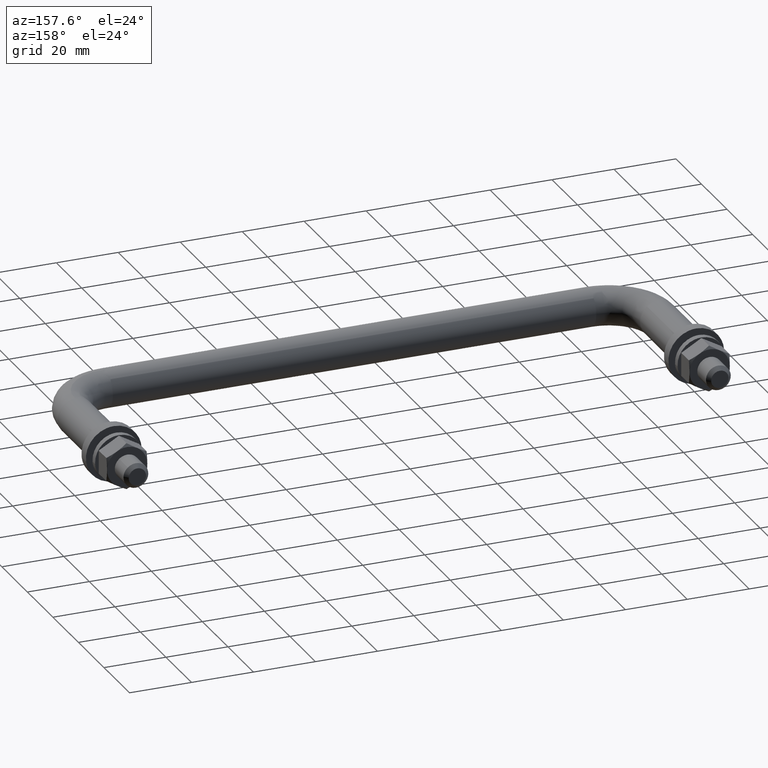
[diagram: clean part render]
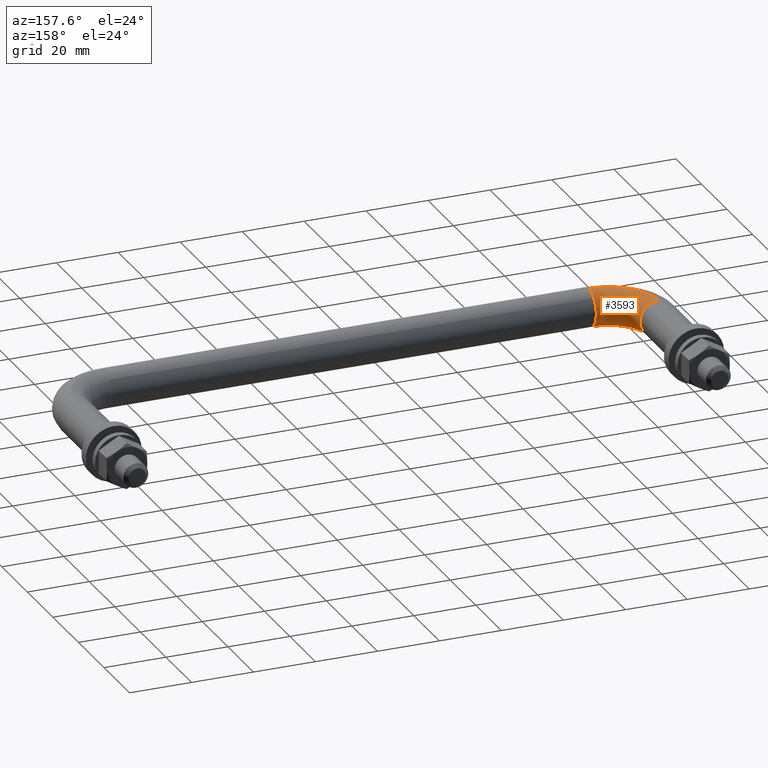
[diagram: same view with one face highlighted and labeled with its STEP entity id]
A machine part, auxiliary view. The second image highlights one B-rep face of the part: STEP entity #3593.
In plain terms, the highlighted face is a freeform B-spline surface patch.
Its self-contained STEP definition (entity closure, byte-faithful):
#2976=CARTESIAN_POINT('',(15.999999999610340,-43.581600490287009,-5.985394043024395));
#2977=VERTEX_POINT('',#2976);
#2993=CARTESIAN_POINT('',(16.0,-38.0,0.0));
#2994=VERTEX_POINT('',#2993);
#2995=CARTESIAN_POINT('',(16.0,-38.0,0.0));
#2996=CARTESIAN_POINT('',(15.999999999999998,-37.999999999999993,-5.595221083111795));
#2997=CARTESIAN_POINT('',(15.999999999610345,-43.581600490287016,-5.985394043024395));
#3005=(BOUNDED_CURVE()B_SPLINE_CURVE(2,(#2995,#2996,#2997),.UNSPECIFIED.,.F.,.U.)B_SPLINE_CURVE_WITH_KNOTS((3,3),(0.0,0.237833686520174),.UNSPECIFIED.)CURVE()GEOMETRIC_REPRESENTATION_ITEM()RATIONAL_B_SPLINE_CURVE((1.0,0.721360504051347,0.972879876355423))REPRESENTATION_ITEM(''));
#3006=EDGE_CURVE('',#2994,#2977,#3005,.T.);
#3008=CARTESIAN_POINT('',(16.0,-40.024283299106493,4.493737499477844));
#3009=VERTEX_POINT('',#3008);
#3010=CARTESIAN_POINT('',(16.0,-40.024283299106486,4.493737499477844));
#3011=CARTESIAN_POINT('',(16.000000000000004,-37.999999999999993,2.702805803863420));
#3012=CARTESIAN_POINT('',(16.0,-38.0,0.0));
#3020=(BOUNDED_CURVE()B_SPLINE_CURVE(2,(#3010,#3011,#3012),.UNSPECIFIED.,.F.,.U.)B_SPLINE_CURVE_WITH_KNOTS((3,3),(0.865779767457664,1.0),.UNSPECIFIED.)CURVE()GEOMETRIC_REPRESENTATION_ITEM()RATIONAL_B_SPLINE_CURVE((0.854350179069043,0.842751216243140,1.0))REPRESENTATION_ITEM(''));
#3021=EDGE_CURVE('',#3009,#2994,#3020,.T.);
#3125=CARTESIAN_POINT('',(15.999999999535239,-44.075396242597783,5.999526265181453));
#3126=VERTEX_POINT('',#3125);
#3127=CARTESIAN_POINT('',(15.999999999535246,-44.075396242597783,5.999526265181453));
#3128=CARTESIAN_POINT('',(16.0,-44.037699611249401,6.0));
#3129=CARTESIAN_POINT('',(16.0,-44.0,6.0));
#3130=CARTESIAN_POINT('',(15.999999999999996,-41.726806087292310,6.0));
#3131=CARTESIAN_POINT('',(16.0,-40.024283299106486,4.493737499477844));
#3139=(BOUNDED_CURVE()B_SPLINE_CURVE(2,(#3127,#3128,#3129,#3130,#3131),.UNSPECIFIED.,.F.,.U.)B_SPLINE_CURVE_WITH_KNOTS((3,2,3),(0.747784295728396,0.750000000000000,0.865779767457664),.UNSPECIFIED.)CURVE()GEOMETRIC_REPRESENTATION_ITEM()RATIONAL_B_SPLINE_CURVE((0.994854295199036,0.997404140975804,1.0,0.864355564943408,0.854350179069043))REPRESENTATION_ITEM(''));
#3140=EDGE_CURVE('',#3126,#3009,#3139,.T.);
#3192=CARTESIAN_POINT('',(-0.075396246629108,-28.000000001397801,5.999526265130792));
#3193=VERTEX_POINT('',#3192);
#3194=CARTESIAN_POINT('',(3.735087819828864,-28.0,4.695648941111983));
#3195=VERTEX_POINT('',#3194);
#3196=CARTESIAN_POINT('',(-0.075396246629108,-28.000000001397797,5.999526265130792));
#3197=CARTESIAN_POINT('',(-0.037699615281203,-27.999999999999996,5.999999999999999));
#3198=CARTESIAN_POINT('',(3.428898E-015,-28.0,6.0));
#3199=CARTESIAN_POINT('',(2.095293800533723,-28.0,6.0));
#3200=CARTESIAN_POINT('',(3.735087819828863,-28.000000000000004,4.695648941111982));
#3208=(BOUNDED_CURVE()B_SPLINE_CURVE(2,(#3196,#3197,#3198,#3199,#3200),.UNSPECIFIED.,.F.,.U.)B_SPLINE_CURVE_WITH_KNOTS((3,2,3),(0.747784295492051,0.750000000000000,0.857863877391647),.UNSPECIFIED.)CURVE()GEOMETRIC_REPRESENTATION_ITEM()RATIONAL_B_SPLINE_CURVE((0.994854294655062,0.997404140698909,1.0,0.873629607028244,0.856305618644006))REPRESENTATION_ITEM(''));
#3209=EDGE_CURVE('',#3193,#3195,#3208,.T.);
#3306=CARTESIAN_POINT('',(6.000000000000004,-28.0,0.0));
#3307=VERTEX_POINT('',#3306);
#3308=CARTESIAN_POINT('',(3.735087819828864,-28.0,4.695648941111983));
#3309=CARTESIAN_POINT('',(6.000000000000003,-27.999999999999996,2.894056444900473));
#3310=CARTESIAN_POINT('',(6.000000000000004,-28.0,0.0));
#3318=(BOUNDED_CURVE()B_SPLINE_CURVE(2,(#3308,#3309,#3310),.UNSPECIFIED.,.F.,.U.)B_SPLINE_CURVE_WITH_KNOTS((3,3),(0.857863877391648,1.0),.UNSPECIFIED.)CURVE()GEOMETRIC_REPRESENTATION_ITEM()RATIONAL_B_SPLINE_CURVE((0.856305618644005,0.833477174158305,1.0))REPRESENTATION_ITEM(''));
#3319=EDGE_CURVE('',#3195,#3307,#3318,.T.);
#3321=CARTESIAN_POINT('',(0.418399509453649,-28.000000000001169,-5.985394043042524));
#3322=VERTEX_POINT('',#3321);
#3323=CARTESIAN_POINT('',(6.000000000000004,-28.0,0.0));
#3324=CARTESIAN_POINT('',(6.000000000000003,-27.999999999999993,-5.595221083597852));
#3325=CARTESIAN_POINT('',(0.418399509453649,-28.000000000001165,-5.985394043042524));
#3333=(BOUNDED_CURVE()B_SPLINE_CURVE(2,(#3323,#3324,#3325),.UNSPECIFIED.,.F.,.U.)B_SPLINE_CURVE_WITH_KNOTS((3,3),(0.0,0.237833686535077),.UNSPECIFIED.)CURVE()GEOMETRIC_REPRESENTATION_ITEM()RATIONAL_B_SPLINE_CURVE((1.0,0.721360504033886,0.972879876386946))REPRESENTATION_ITEM(''));
#3334=EDGE_CURVE('',#3307,#3322,#3333,.T.);
#3528=CARTESIAN_POINT('',(-0.075396246629108,-28.000000001397801,5.999526265130792));
#3529=CARTESIAN_POINT('',(-0.075396236504506,-44.075396238370594,5.999526265222894));
#3530=CARTESIAN_POINT('',(15.999999999535250,-44.075396242597783,5.999526265181453));
#3538=(BOUNDED_CURVE()B_SPLINE_CURVE(2,(#3528,#3529,#3530),.UNSPECIFIED.,.F.,.U.)B_SPLINE_CURVE_WITH_KNOTS((3,3),(-1.744561813132473,-0.255438186745294),.UNSPECIFIED.)CURVE()GEOMETRIC_REPRESENTATION_ITEM()RATIONAL_B_SPLINE_CURVE((0.894678509977967,0.632633241475806,0.894678510020986))REPRESENTATION_ITEM(''));
#3539=EDGE_CURVE('',#3193,#3126,#3538,.T.);
#3544=CARTESIAN_POINT('',(0.418399509453649,-28.000000000001169,-5.985394043042524));
#3545=CARTESIAN_POINT('',(0.418399509454987,-43.581600489768043,-5.985394043042594));
#3546=CARTESIAN_POINT('',(15.999999999610342,-43.581600490287009,-5.985394043024395));
#3554=(BOUNDED_CURVE()B_SPLINE_CURVE(2,(#3544,#3545,#3546),.UNSPECIFIED.,.F.,.U.)B_SPLINE_CURVE_WITH_KNOTS((3,3),(-1.744561813315432,-0.255438186737073),.UNSPECIFIED.)CURVE()GEOMETRIC_REPRESENTATION_ITEM()RATIONAL_B_SPLINE_CURVE((0.874553433413147,0.618402663285538,0.874553433395084))REPRESENTATION_ITEM(''));
#3555=EDGE_CURVE('',#3322,#2977,#3554,.T.);
#3560=CARTESIAN_POINT('',(-0.036483567885711,-26.882163237571998,5.999526265222896));
#3561=CARTESIAN_POINT('',(-1.321836769248059,-45.321837244897431,5.999526265222896));
#3562=CARTESIAN_POINT('',(17.117837202782201,-44.036483537190442,5.999526265222895));
#3563=CARTESIAN_POINT('',(5.948520032344958,-27.299353017318939,6.074922504523007));
#3564=CARTESIAN_POINT('',(5.142875708876957,-38.857124589254489,6.074922504523005));
#3565=CARTESIAN_POINT('',(16.700647258689905,-38.051479948415611,6.074922504523006));
#3566=CARTESIAN_POINT('',(6.023733764847594,-27.304595854682560,0.075396239300112));
#3567=CARTESIAN_POINT('',(5.224117958257964,-38.775882337642635,0.075396239300112));
#3568=CARTESIAN_POINT('',(16.695404419260946,-37.976266216056942,0.075396239300112));
#3569=CARTESIAN_POINT('',(6.094762111864237,-27.309546946181744,-5.590277027038187));
#3570=CARTESIAN_POINT('',(5.300839355926196,-38.699160937867653,-5.590277027038189));
#3571=CARTESIAN_POINT('',(16.690453325811365,-37.905237869176247,-5.590277027038187));
#3572=CARTESIAN_POINT('',(0.456116881452277,-26.916500371964812,-5.985394043042593));
#3573=CARTESIAN_POINT('',(-0.789753501755532,-44.789753962794158,-5.985394043042592));
#3574=CARTESIAN_POINT('',(17.083500054862824,-43.543883088795340,-5.985394043042594));
#3582=(BOUNDED_SURFACE()B_SPLINE_SURFACE(2,2,((#3560,#3563,#3566,#3569,#3572),(#3561,#3564,#3567,#3570,#3573),(#3562,#3565,#3568,#3571,#3574)),.UNSPECIFIED.,.F.,.F.,.U.)B_SPLINE_SURFACE_WITH_KNOTS((3,3),(3,2,3),(0.0,29.295383694434790),(0.0,9.941125496954280,19.484605974030391),.UNSPECIFIED.)GEOMETRIC_REPRESENTATION_ITEM()RATIONAL_B_SPLINE_SURFACE(((0.922164430830710,0.652068722409428,0.922164430830710,0.662872550746279,0.901421080423955),(0.605147314876259,0.427903769965834,0.605147314876259,0.434993511762250,0.591535010627138),(0.922164442367337,0.652068730567055,0.922164442367337,0.662872559039067,0.901421091701076)))REPRESENTATION_ITEM('')SURFACE());
#3583=ORIENTED_EDGE('',*,*,#3006,.T.);
#3584=ORIENTED_EDGE('',*,*,#3555,.F.);
#3585=ORIENTED_EDGE('',*,*,#3334,.F.);
#3586=ORIENTED_EDGE('',*,*,#3319,.F.);
#3587=ORIENTED_EDGE('',*,*,#3209,.F.);
#3588=ORIENTED_EDGE('',*,*,#3539,.T.);
#3589=ORIENTED_EDGE('',*,*,#3140,.T.);
#3590=ORIENTED_EDGE('',*,*,#3021,.T.);
#3591=EDGE_LOOP('',(#3583,#3584,#3585,#3586,#3587,#3588,#3589,#3590));
#3592=FACE_OUTER_BOUND('',#3591,.T.);
#3593=ADVANCED_FACE('',(#3592),#3582,.T.);